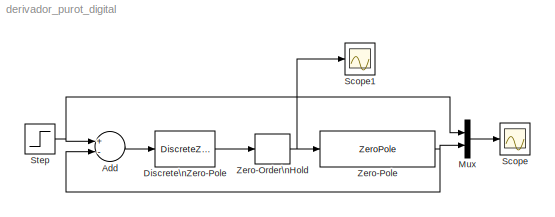
MODEL derivador_purot_digital
KIND model
BLOCK [Sum] Add
  InputSameDT = off
  Inputs = +-
  OutDataTypeStr = Inherit: Inherit via internal rule
  Ports = [2, 1]
  SID = 2
  SaturateOnIntegerOverflow = off
BLOCK [DiscreteZeroPole] Discrete\nZero-Pole
  Gain = 1
  Poles = [0]
  SID = 14
  SampleTime = 0.1
BLOCK [Mux] Mux
  DisplayOption = bar
  Inputs = 2
  Ports = [2, 1]
  SID = 5
BLOCK [Scope] Scope
  Floating = off
  NumInputPorts = 1
  Ports = [1]
  SID = 6
  ScopeSpecificationString = Simulink.scopes.TimeScopeBlockCfg('CurrentConfiguration', extmgr.ConfigurationSet(extmgr.Configuration('Core','General UI',true,'FigureColor',[1 1 1]),extmgr.Configuration('Core','Source UI',true),extmgr.Configuration('Sources','WiredSimulink',true),extmgr.Configuration('Visuals','Time Domain',true,'SerializedDisplays',{struct('MinYLimReal','-0.00232','MaxYLimReal','0.00653','YLabelReal','','MinYL...<+1717ch>
BLOCK [Scope] Scope1
  Floating = off
  NumInputPorts = 1
  Ports = [1]
  SID = 7
  ScopeSpecificationString = Simulink.scopes.TimeScopeBlockCfg('CurrentConfiguration', extmgr.ConfigurationSet(extmgr.Configuration('Core','General UI',true,'FigureColor',[1 1 1]),extmgr.Configuration('Core','Source UI',true),extmgr.Configuration('Sources','WiredSimulink',true,'DataLoggingVariableName','ScopeData1'),extmgr.Configuration('Visuals','Time Domain',true,'SerializedDisplays',{struct('MinYLimReal','-0.12564','MaxYLi...<+1620ch>
BLOCK [Step] Step
  SID = 1
  SampleTime = 0
BLOCK [ZeroOrderHold] Zero-Order\nHold
  SID = 12
  SampleTime = 0.1
BLOCK [ZeroPole] Zero-Pole
  Poles = [-1 -2 -10]
  SID = 4
  Zeros = [ ]
LINE Add:1 -> Discrete\nZero-Pole:1
LINE Discrete\nZero-Pole:1 -> Zero-Order\nHold:1
LINE Mux:1 -> Scope:1
NET Step:1 -> Add:1, Mux:1
NET Zero-Order\nHold:1 -> Scope1:1, Zero-Pole:1
NET Zero-Pole:1 -> Add:2, Mux:2
note: NET lines group one-source signal fan-out (src -> all destinations, sorted); 1:1 wires keep LINE
